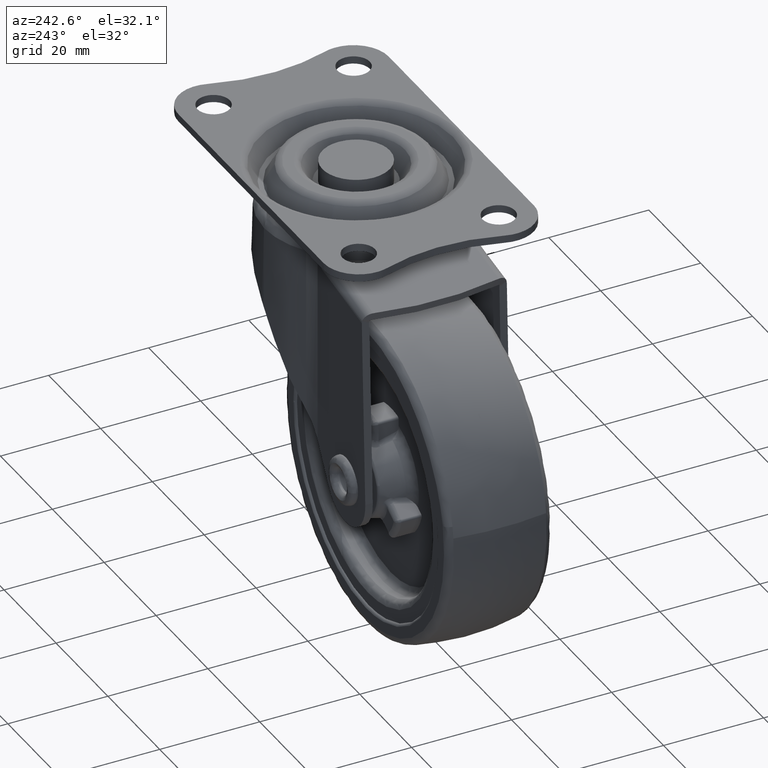
[diagram: clean part render]
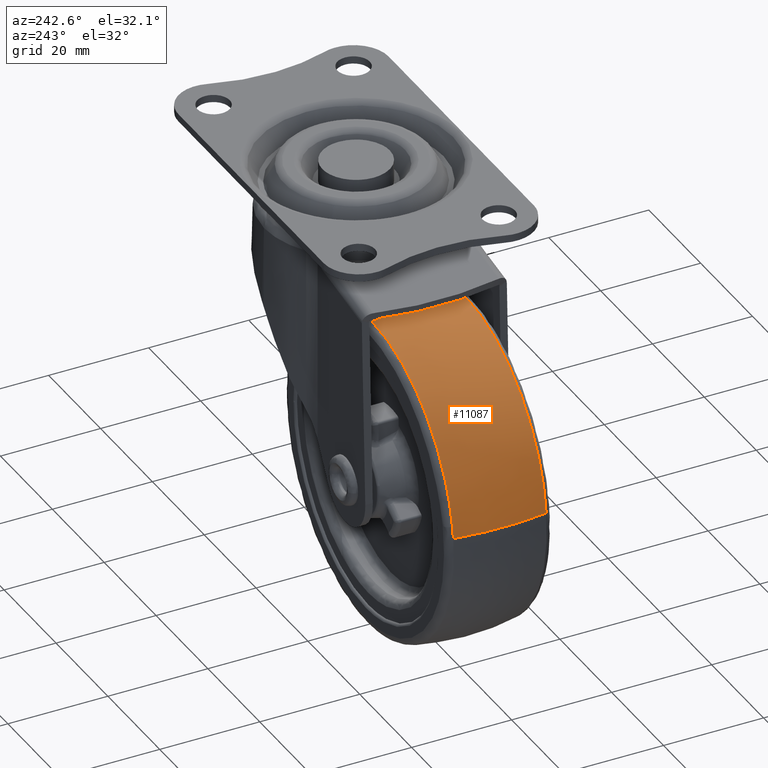
[diagram: same view with one face highlighted and labeled with its STEP entity id]
A machine part, auxiliary view. The second image highlights one B-rep face of the part: STEP entity #11087.
In plain terms, the highlighted face is a freeform B-spline surface patch.
Its self-contained STEP definition (entity closure, byte-faithful):
#9836=CARTESIAN_POINT('',(-55.071296465321481,9.278360457178298,-42.072829203037877));
#9837=VERTEX_POINT('',#9836);
#9848=CARTESIAN_POINT('',(-24.0,9.278340652740681,-16.368413542973521));
#9849=VERTEX_POINT('',#9848);
#9850=CARTESIAN_POINT('',(-24.0,9.278340652740681,-16.368413542973521));
#9851=CARTESIAN_POINT('',(-25.594119031969040,9.278341237615461,-16.368323063505649));
#9852=CARTESIAN_POINT('',(-28.440734546796989,9.278342352614116,-16.584065263706751));
#9853=CARTESIAN_POINT('',(-31.954443525653119,9.278343887412746,-17.335168861705728));
#9854=CARTESIAN_POINT('',(-35.106006925689620,9.278345368245622,-18.327629367407550));
#9855=CARTESIAN_POINT('',(-38.675353810906429,9.278347174357515,-19.846135162465501));
#9856=CARTESIAN_POINT('',(-42.230059863870373,9.278349192402226,-22.029292166114349));
#9857=CARTESIAN_POINT('',(-45.759239237296562,9.278351431421630,-24.916972059910929));
#9858=CARTESIAN_POINT('',(-48.774792205872622,9.278353584639733,-28.118635350180369));
#9859=CARTESIAN_POINT('',(-51.403997888742232,9.278355816267787,-31.993700517203440));
#9860=CARTESIAN_POINT('',(-53.663760243448507,9.278358152554366,-36.603482695320700));
#9861=CARTESIAN_POINT('',(-54.666202758507247,9.278359613717781,-39.947625662800498));
#9862=CARTESIAN_POINT('',(-55.071296465321481,9.278360457178298,-42.072829203037877));
#9863=B_SPLINE_CURVE_WITH_KNOTS('',3,(#9850,#9851,#9852,#9853,#9854,#9855,#9856,#9857,#9858,#9859,#9860,#9861,#9862),.UNSPECIFIED.,.F.,.U.,(4,1,1,1,1,1,1,1,1,1,4),(0.000000053173430,4.782353224196982,8.539923717530776,10.760304036543049,14.688675026356121,20.154261139374150,23.228565906769330,28.352527839849351,33.305704666172218,37.234089143077213,43.724411305839929),.UNSPECIFIED.);
#9864=EDGE_CURVE('',#9849,#9837,#9863,.T.);
#9958=CARTESIAN_POINT('',(-55.420019626395813,9.278361322975613,-44.347718838754588));
#9959=VERTEX_POINT('',#9958);
#9979=CARTESIAN_POINT('',(-55.071296465321481,9.278360457178298,-42.072829203037877));
#9980=CARTESIAN_POINT('',(-55.215081076087337,9.278360752580678,-42.826560717527222));
#9981=CARTESIAN_POINT('',(-55.331425684884827,9.278361041434980,-43.585527126200361));
#9982=CARTESIAN_POINT('',(-55.420019626395813,9.278361322975613,-44.347718838754588));
#9983=B_SPLINE_CURVE_WITH_KNOTS('',3,(#9979,#9980,#9981,#9982),.UNSPECIFIED.,.F.,.U.,(4,4),(9.548540E-011,2.301972659913649),.UNSPECIFIED.);
#9984=EDGE_CURVE('',#9837,#9959,#9983,.T.);
#10202=CARTESIAN_POINT('',(-24.0,-9.278336809609019,-16.368412817215621));
#10203=VERTEX_POINT('',#10202);
#10220=CARTESIAN_POINT('',(-55.420022977033028,-9.278343487341120,-44.347718492499752));
#10221=VERTEX_POINT('',#10220);
#10222=CARTESIAN_POINT('',(-24.0,-9.278336809609019,-16.368412817215621));
#10223=CARTESIAN_POINT('',(-25.438319296868709,-9.278336980094421,-16.368354124613589));
#10224=CARTESIAN_POINT('',(-28.135151841823781,-9.278337319220647,-16.552679219209089));
#10225=CARTESIAN_POINT('',(-32.139422012227172,-9.278337877829060,-17.348105975538768));
#10226=CARTESIAN_POINT('',(-36.470594833881883,-9.278338543288813,-18.788710468987631));
#10227=CARTESIAN_POINT('',(-40.372322814235680,-9.278339218858443,-20.807353421025130));
#10228=CARTESIAN_POINT('',(-43.889834294978790,-9.278339900642848,-23.316331954921051));
#10229=CARTESIAN_POINT('',(-46.789950054565367,-9.278340520130724,-25.928455101135160));
#10230=CARTESIAN_POINT('',(-49.434390606314132,-9.278341162314927,-29.042708481252109));
#10231=CARTESIAN_POINT('',(-51.974437123456127,-9.278341878671224,-32.976883677104311));
#10232=CARTESIAN_POINT('',(-54.220747231722157,-9.278342672115054,-37.971227377020398));
#10233=CARTESIAN_POINT('',(-55.157409348686862,-9.278343217428102,-42.085537340546871));
#10234=CARTESIAN_POINT('',(-55.420022977033028,-9.278343487341120,-44.347718492499752));
#10235=B_SPLINE_CURVE_WITH_KNOTS('',3,(#10222,#10223,#10224,#10225,#10226,#10227,#10228,#10229,#10230,#10231,#10232,#10233,#10234),.UNSPECIFIED.,.F.,.U.,(4,1,1,1,1,1,1,1,1,1,4),(0.000000057386437,4.314953359550366,8.090565219273728,12.225762490642390,17.979086195673350,21.215296249426920,25.170650617402220,29.665430155641499,33.441046579257922,39.194351534983007,46.026393327297761),.UNSPECIFIED.);
#10236=EDGE_CURVE('',#10203,#10221,#10235,.T.);
#11022=CARTESIAN_POINT('',(-24.0,-9.278336809609019,-16.368412817215621));
#11023=CARTESIAN_POINT('',(-24.000000000000071,-6.699194664446218,-15.881154550241790));
#11024=CARTESIAN_POINT('',(-23.999999999999950,-2.821292565218377,-15.461395094443120));
#11025=CARTESIAN_POINT('',(-24.000000000000039,3.404576468782151,-15.515865817907430));
#11026=CARTESIAN_POINT('',(-23.999999999999989,6.985767960392616,-15.935361624214851));
#11027=CARTESIAN_POINT('',(-24.0,9.278340652740681,-16.368413542973521));
#11028=B_SPLINE_CURVE_WITH_KNOTS('',3,(#11022,#11023,#11024,#11025,#11026,#11027),.UNSPECIFIED.,.F.,.U.,(4,1,1,4),(2.383533E-009,7.874258284436603,11.665555407859490,18.664888808777860),.UNSPECIFIED.);
#11029=EDGE_CURVE('',#10203,#9849,#11028,.T.);
#11035=CARTESIAN_POINT('',(-55.420022977033028,-9.278343487341120,-44.347718492499752));
#11036=CARTESIAN_POINT('',(-55.868137254218993,-6.890246273485013,-44.295628923454743));
#11037=CARTESIAN_POINT('',(-56.296442121807289,-3.113403379192359,-44.245842030538533));
#11038=CARTESIAN_POINT('',(-56.296456381326323,3.113424388853034,-44.245840358482013));
#11039=CARTESIAN_POINT('',(-55.868111050520980,6.890260857649413,-44.295631937314532));
#11040=CARTESIAN_POINT('',(-55.420019626395813,9.278361322975613,-44.347718838754588));
#11041=B_SPLINE_CURVE_WITH_KNOTS('',3,(#11035,#11036,#11037,#11038,#11039,#11040),.UNSPECIFIED.,.F.,.U.,(4,1,1,4),(2.383192E-009,7.290986241197631,11.373930401433769,18.664916640248268),.UNSPECIFIED.);
#11042=EDGE_CURVE('',#10221,#9959,#11041,.T.);
#11047=CARTESIAN_POINT('',(-23.795986403880146,-10.215959549430321,-16.554779987764405));
#11048=CARTESIAN_POINT('',(-23.789143064836470,-5.162432283824119,-15.499996000000007));
#11049=CARTESIAN_POINT('',(-23.789143064836459,0.0,-15.499995999999996));
#11050=CARTESIAN_POINT('',(-23.789143064836466,5.162441336658707,-15.499995999999999));
#11051=CARTESIAN_POINT('',(-23.795986427627945,10.215977086200180,-16.554783648083163));
#11052=CARTESIAN_POINT('',(-23.897855952079333,-10.215959549430320,-16.554779987764412));
#11053=CARTESIAN_POINT('',(-23.894429678710758,-5.162432283824118,-15.499996000000005));
#11054=CARTESIAN_POINT('',(-23.894429678710758,0.0,-15.499996000000008));
#11055=CARTESIAN_POINT('',(-23.894429678710750,5.162441336658706,-15.499996000000008));
#11056=CARTESIAN_POINT('',(-23.897855963969217,10.215977086200180,-16.554783648083159));
#11057=CARTESIAN_POINT('',(-52.001703889606333,-10.215959549430320,-16.554779987764405));
#11058=CARTESIAN_POINT('',(-52.940980276875685,-5.162432283824117,-15.499996000000010));
#11059=CARTESIAN_POINT('',(-52.940980276875685,0.0,-15.499996000000010));
#11060=CARTESIAN_POINT('',(-52.940980276875692,5.162441336658707,-15.499996000000010));
#11061=CARTESIAN_POINT('',(-52.001700630122855,10.215977086200182,-16.554783648083170));
#11062=CARTESIAN_POINT('',(-55.247228685823458,-10.215959549430323,-44.475267335547237));
#11063=CARTESIAN_POINT('',(-56.295371476987434,-5.162432283824117,-44.357035444405746));
#11064=CARTESIAN_POINT('',(-56.295371476987434,0.0,-44.357035444405746));
#11065=CARTESIAN_POINT('',(-56.295371476987448,5.162441336658706,-44.357035444405739));
#11066=CARTESIAN_POINT('',(-55.247225048551016,10.215977086200180,-44.475267745836348));
#11067=CARTESIAN_POINT('',(-55.259529220820603,-10.215959549430321,-44.581085948351955));
#11068=CARTESIAN_POINT('',(-56.308084615521828,-5.162432283824117,-44.466403588508022));
#11069=CARTESIAN_POINT('',(-56.308084615521835,0.0,-44.466403588508022));
#11070=CARTESIAN_POINT('',(-56.308084615521828,5.162441336658706,-44.466403588508015));
#11071=CARTESIAN_POINT('',(-55.259525582116346,10.215977086200180,-44.581086346323467));
#11079=(BOUNDED_SURFACE()B_SPLINE_SURFACE(2,2,((#11047,#11052,#11057,#11062,#11067),(#11048,#11053,#11058,#11063,#11068),(#11049,#11054,#11059,#11064,#11069),(#11050,#11055,#11060,#11065,#11070),(#11051,#11056,#11061,#11066,#11071)),.UNSPECIFIED.,.F.,.F.,.U.)B_SPLINE_SURFACE_WITH_KNOTS((3,2,3),(3,1,1,3),(0.0,10.546068313645360,21.092154541984510),(0.0,0.247428236635390,49.733031817800963,49.980504906438362),.UNSPECIFIED.)GEOMETRIC_REPRESENTATION_ITEM()RATIONAL_B_SPLINE_SURFACE(((0.950935620909058,0.949657858922949,0.692827925626431,0.908565264159209,0.909638778791243),(0.971308749313077,0.970003612173025,0.707671277773849,0.928030637401250,0.929127151330988),(1.002694619995161,1.001347309997580,0.730538238691624,0.958018063742345,0.959150009294030),(0.971308695997638,0.970003558929225,0.707671238929553,0.928030586461360,0.929127100330910),(0.950935551693085,0.949657789799981,0.692827875197403,0.908565198027257,0.909638712581153)))REPRESENTATION_ITEM('')SURFACE());
#11080=ORIENTED_EDGE('',*,*,#9864,.T.);
#11081=ORIENTED_EDGE('',*,*,#9984,.T.);
#11082=ORIENTED_EDGE('',*,*,#11042,.F.);
#11083=ORIENTED_EDGE('',*,*,#10236,.F.);
#11084=ORIENTED_EDGE('',*,*,#11029,.T.);
#11085=EDGE_LOOP('',(#11080,#11081,#11082,#11083,#11084));
#11086=FACE_OUTER_BOUND('',#11085,.T.);
#11087=ADVANCED_FACE('',(#11086),#11079,.T.);